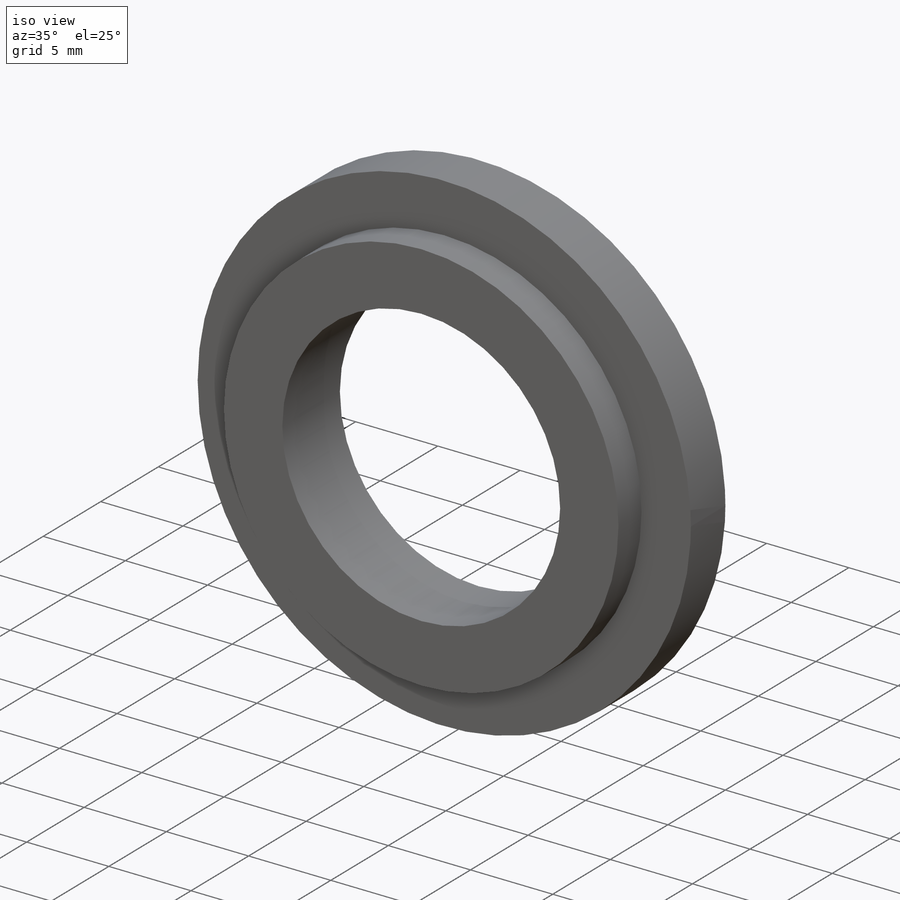
[diagram: iso view]
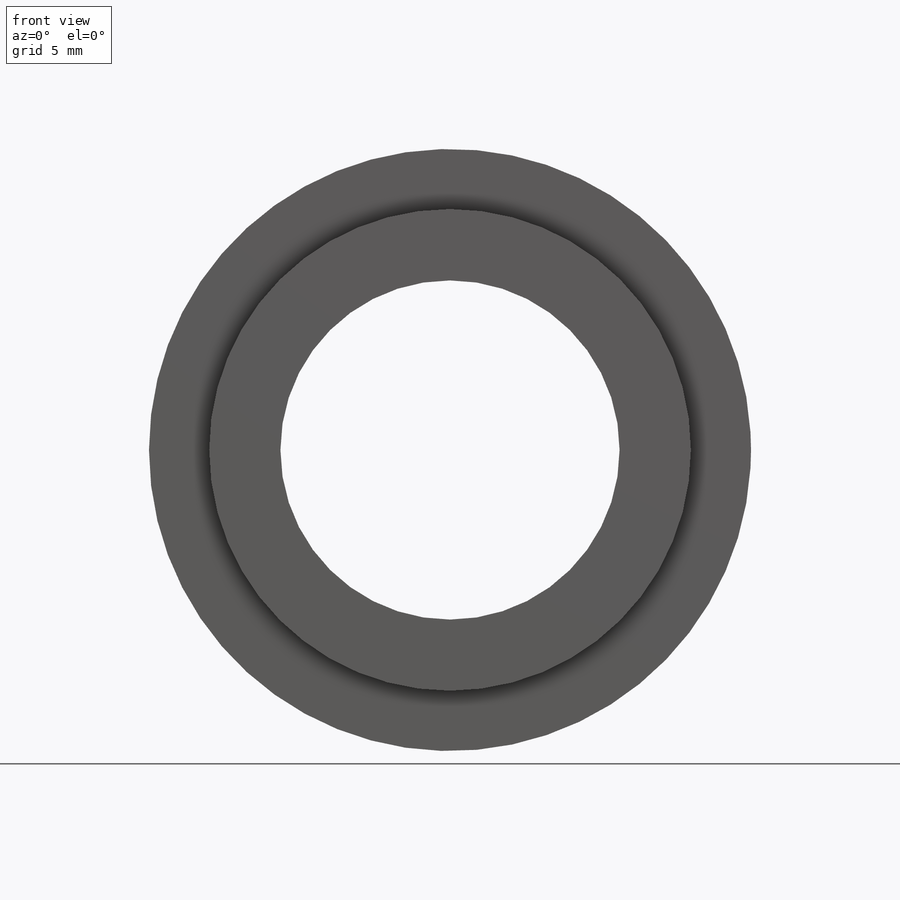
[diagram: front view]
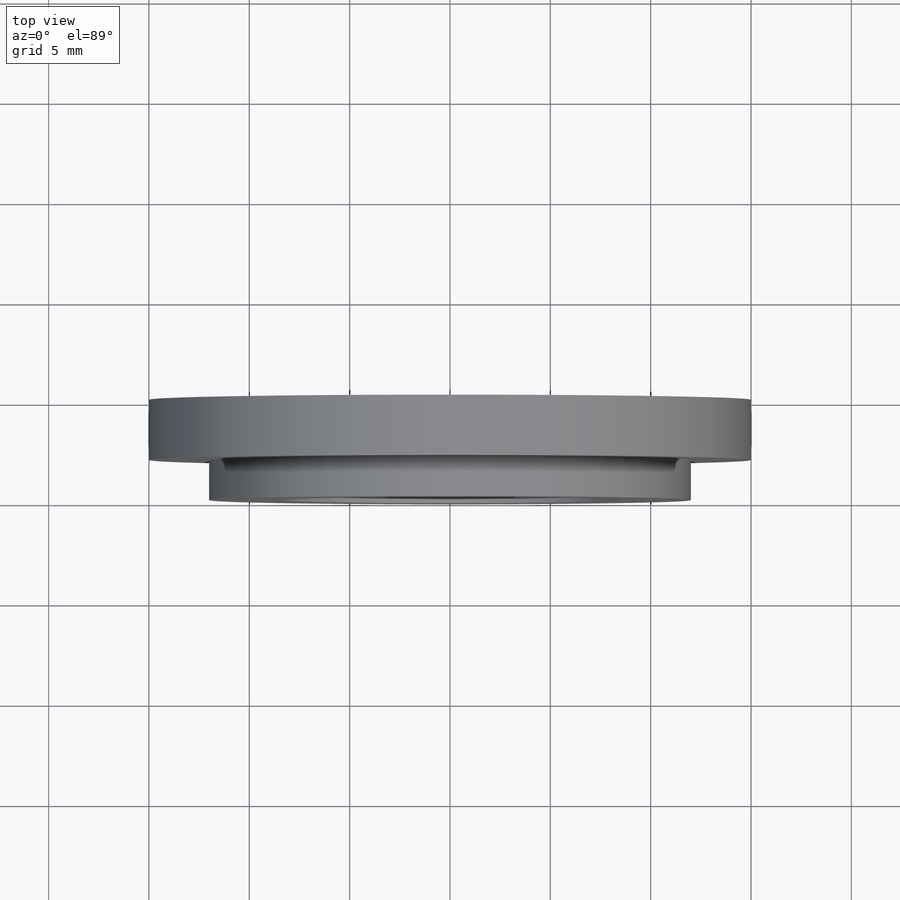
[diagram: top view]
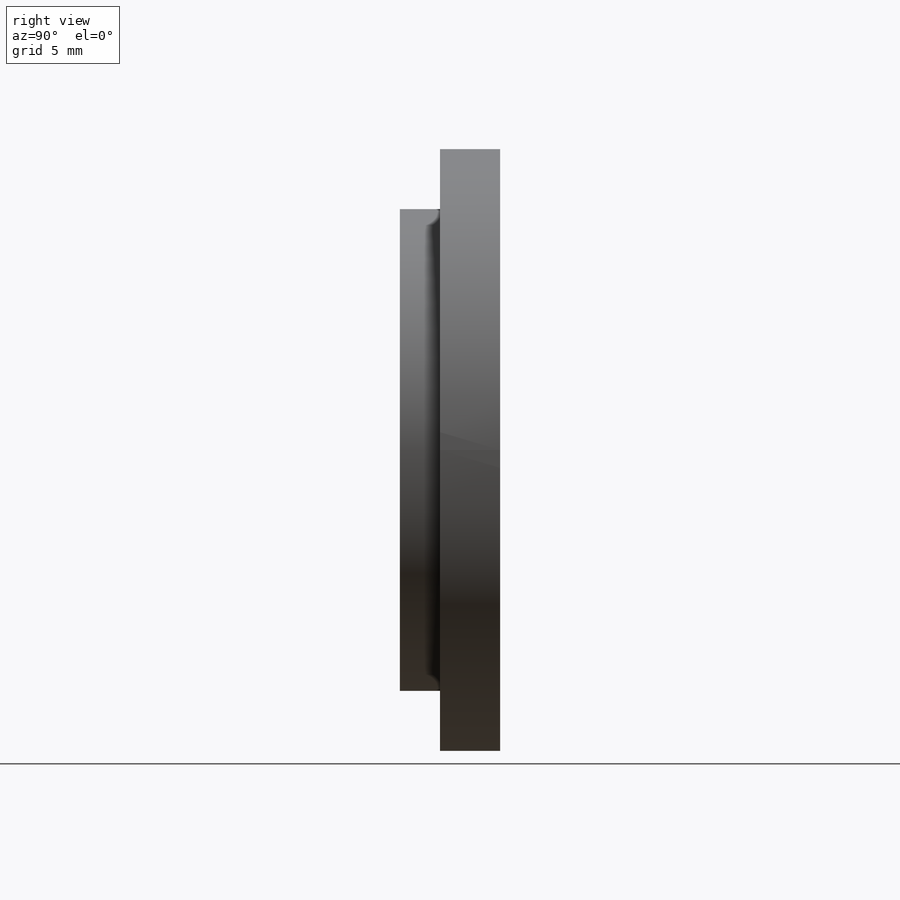
[diagram: right view]
SOLIDWORKS PART (.sldprt)
format: sldprt  version: not decoded by parser v0  size: 157,696 bytes
history: native  units: mm
features: sketch x3, extrude x2, material x1, cut_extrude x1 (+16 scaffold rows collapsed)
feature tree (23):
  scaffold x16  (default folders/planes/origin — collapsed)
  material  "1023 Carbon Steel Sheet (SS)"
  sketch  "Sketch1"  dims[D1=30.0mm]
  extrude  "Extrude1"  Depth=3mm
  sketch  "Sketch2"  dims[D1=24.0mm]
  extrude  "Extrude2"  Depth=2mm
  sketch  "Sketch3"  dims[D1=16.9mm]
  cut_extrude  "Extrude3"  Depth=13mm
decode coverage: 6 of 6 modeling features carry decoded parameters
note: suppression state not decoded; provenance and decode notes live in map.json
